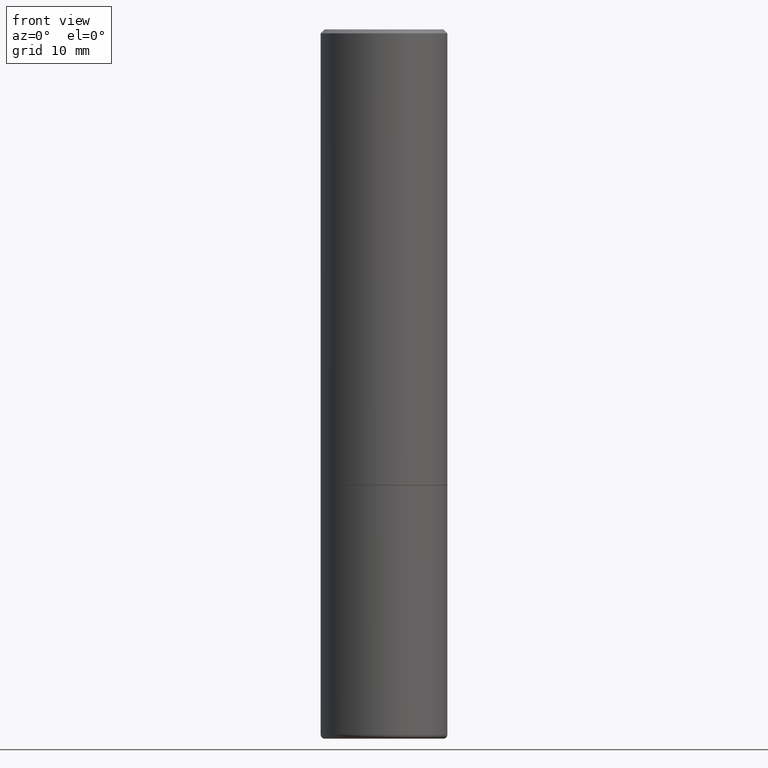
[diagram: clean part render]
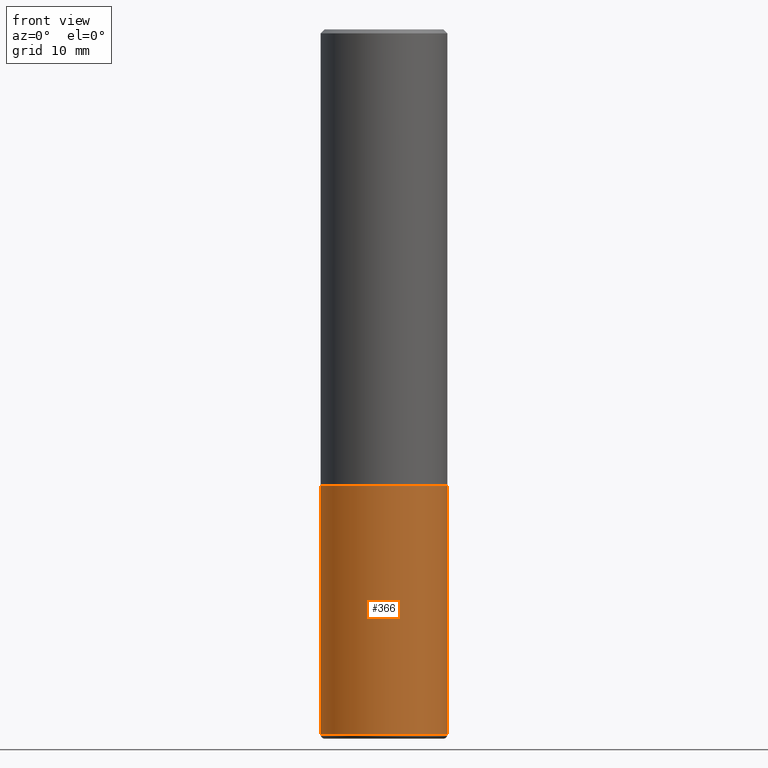
[diagram: same view with one face highlighted and labeled with its STEP entity id]
A machine part, front view. The second image highlights one B-rep face of the part: STEP entity #366.
In plain terms, the highlighted cylindrical surface (partial cylindrical patch) has radius 7.9375 mm, axis along (-0, 0, 1).
Its self-contained STEP definition (entity closure, byte-faithful):
#12 = DIRECTION ( 'NONE',  ( 1.000000000000000000, -6.982962677686265133E-15, 0.000000000000000000 ) ) ;
#16 = LINE ( 'NONE', #78, #64 ) ;
#17 = CARTESIAN_POINT ( 'NONE',  ( 0.3125000000000000000, -1.003800884917403364E-14, -2.249999999999999556 ) ) ;
#18 = EDGE_CURVE ( 'NONE', #414, #67, #16, .T. ) ;
#26 = CARTESIAN_POINT ( 'NONE',  ( 0.000000000000000000, 0.000000000000000000, 0.000000000000000000 ) ) ;
#46 = DIRECTION ( 'NONE',  ( 1.000000000000000000, -6.982962677686269077E-15, 0.000000000000000000 ) ) ;
#47 = DIRECTION ( 'NONE',  ( -2.445468806185136877E-29, 3.491481338843145188E-15, 1.000000000000000000 ) ) ;
#53 = AXIS2_PLACEMENT_3D ( 'NONE', #154, #215, #46 ) ;
#58 = DIRECTION ( 'NONE',  ( -2.445468806185136597E-29, 3.491481338843145583E-15, 1.000000000000000000 ) ) ;
#64 = VECTOR ( 'NONE', #47, 39.37007874015748143 ) ;
#67 = VERTEX_POINT ( 'NONE', #91 ) ;
#78 = CARTESIAN_POINT ( 'NONE',  ( -0.3124999999999998890, 2.220446049250312292E-15, -1.537167215704657391E-29 ) ) ;
#88 = CYLINDRICAL_SURFACE ( 'NONE', #281, 0.3124999999999998890 ) ;
#91 = CARTESIAN_POINT ( 'NONE',  ( -0.3125000000000000000, -7.782695836073597873E-15, -2.249999999999999556 ) ) ;
#106 = CARTESIAN_POINT ( 'NONE',  ( -0.3124999999999997224, -7.782695836073599450E-15, -3.480027409304908392 ) ) ;
#139 = DIRECTION ( 'NONE',  ( -2.445468806185136877E-29, 3.491481338843145188E-15, 1.000000000000000000 ) ) ;
#141 = VERTEX_POINT ( 'NONE', #17 ) ;
#149 = DIRECTION ( 'NONE',  ( -2.445468806185136597E-29, 3.491481338843145583E-15, 1.000000000000000000 ) ) ;
#151 = EDGE_CURVE ( 'NONE', #67, #141, #201, .T. ) ;
#154 = CARTESIAN_POINT ( 'NONE',  ( 8.510298474124427942E-29, -1.215045075825074504E-14, -3.480027409304908392 ) ) ;
#188 = AXIS2_PLACEMENT_3D ( 'NONE', #332, #149, #12 ) ;
#201 = CIRCLE ( 'NONE', #188, 0.3125000000000000000 ) ;
#214 = ORIENTED_EDGE ( 'NONE', *, *, #151, .F. ) ;
#215 = DIRECTION ( 'NONE',  ( -2.445468806185136597E-29, 3.491481338843145583E-15, 1.000000000000000000 ) ) ;
#228 = EDGE_CURVE ( 'NONE', #414, #308, #260, .T. ) ;
#234 = ORIENTED_EDGE ( 'NONE', *, *, #245, .T. ) ;
#240 = EDGE_LOOP ( 'NONE', ( #372, #377, #234, #214 ) ) ;
#245 = EDGE_CURVE ( 'NONE', #308, #141, #391, .T. ) ;
#259 = DIRECTION ( 'NONE',  ( 1.000000000000000000, -6.982962677686266711E-15, 4.876176775795935232E-29 ) ) ;
#260 = CIRCLE ( 'NONE', #53, 0.3124999999999997224 ) ;
#261 = CARTESIAN_POINT ( 'NONE',  ( 0.3124999999999997224, -1.433262659502770023E-14, -3.480027409304908392 ) ) ;
#281 = AXIS2_PLACEMENT_3D ( 'NONE', #26, #58, #259 ) ;
#297 = FACE_OUTER_BOUND ( 'NONE', #240, .T. ) ;
#308 = VERTEX_POINT ( 'NONE', #261 ) ;
#321 = CARTESIAN_POINT ( 'NONE',  ( 0.3124999999999998890, -2.182175836776957558E-15, 1.523805242436229235E-29 ) ) ;
#332 = CARTESIAN_POINT ( 'NONE',  ( 5.502304813916556222E-29, -7.855833012397075293E-15, -2.249999999999999556 ) ) ;
#340 = VECTOR ( 'NONE', #139, 39.37007874015748143 ) ;
#366 = ADVANCED_FACE ( 'NONE', ( #297 ), #88, .T. ) ;
#372 = ORIENTED_EDGE ( 'NONE', *, *, #18, .F. ) ;
#377 = ORIENTED_EDGE ( 'NONE', *, *, #228, .T. ) ;
#391 = LINE ( 'NONE', #321, #340 ) ;
#414 = VERTEX_POINT ( 'NONE', #106 ) ;